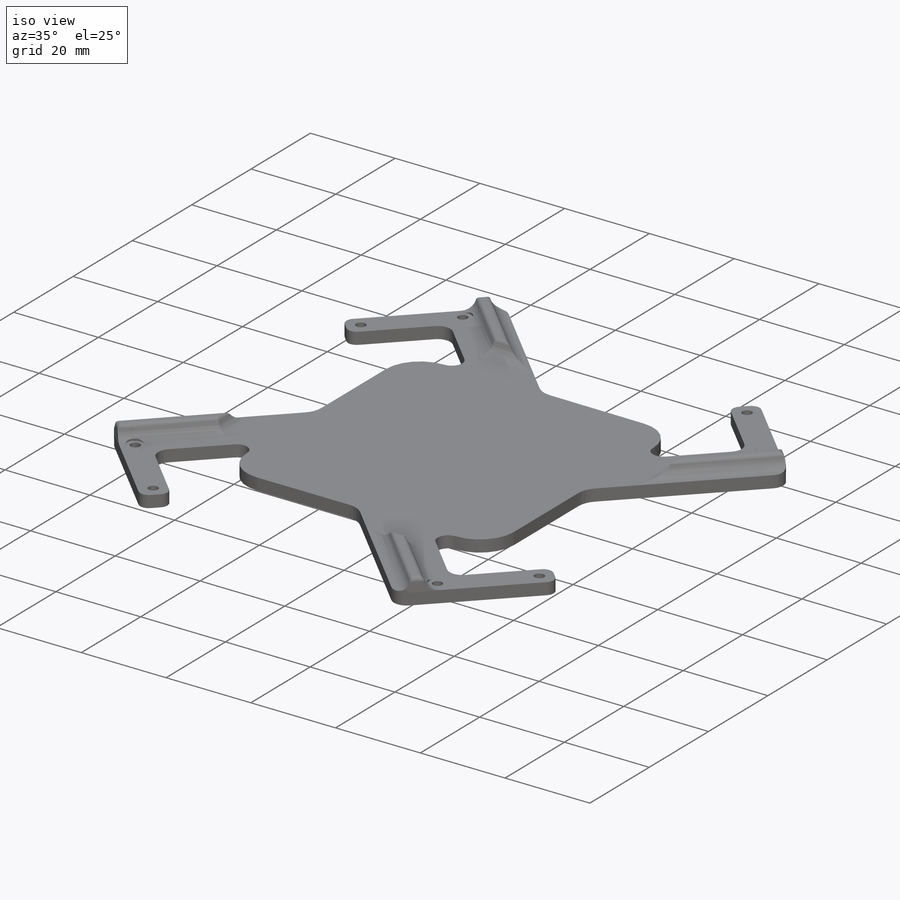
[diagram: iso view]
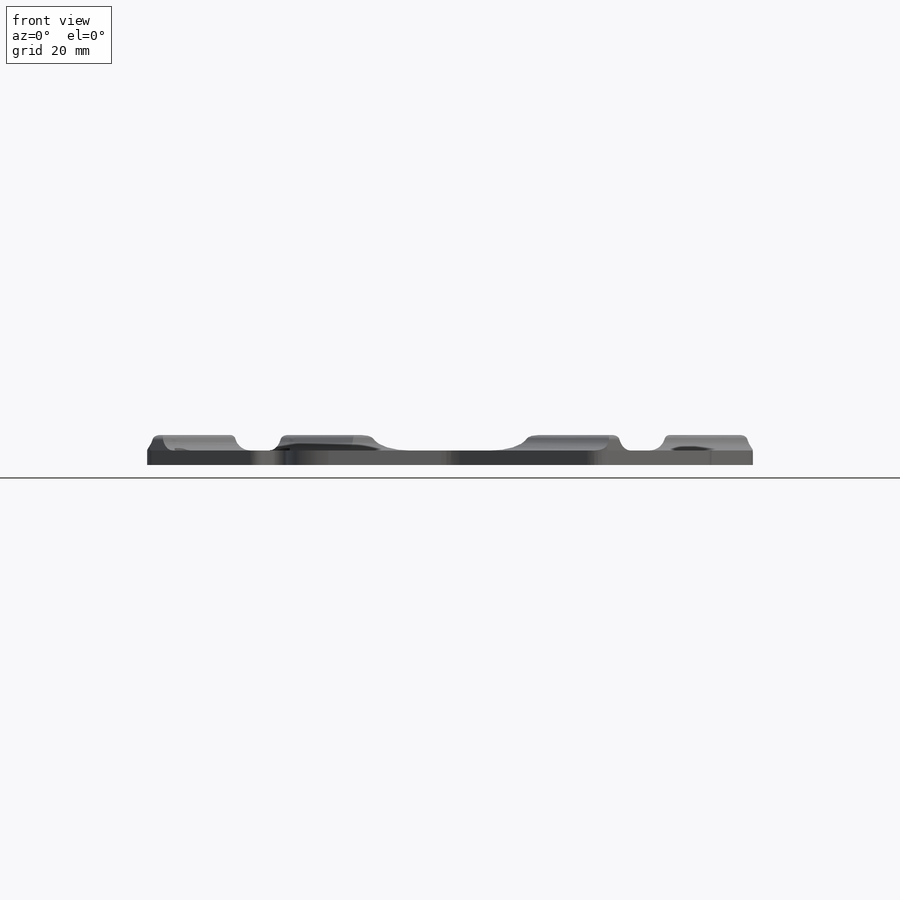
[diagram: front view]
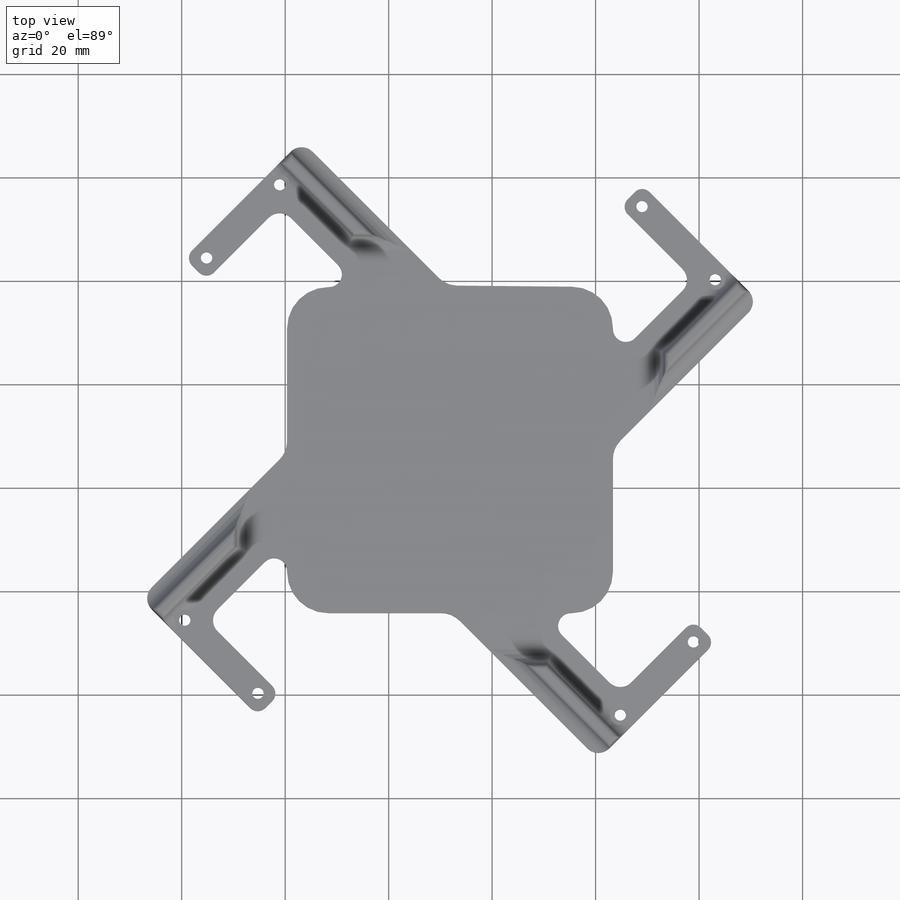
[diagram: top view]
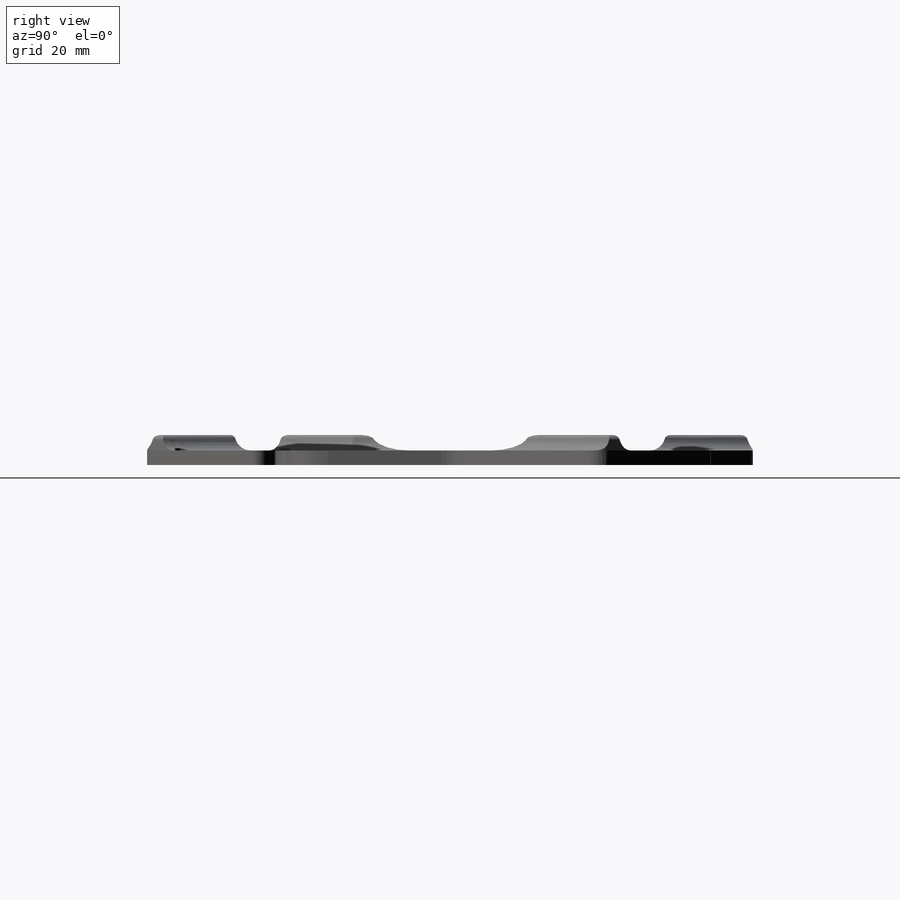
[diagram: right view]
SOLIDWORKS PART (.sldprt)
format: sldprt  version: not decoded by parser v0  size: 488,960 bytes
history: native  units: mm
features: sketch x4, extrude x2, cut_extrude x2, fillet x2, material x1 (+11 scaffold rows collapsed)
feature tree (22):
  scaffold x11  (default folders/planes/origin — collapsed)
  material  "Material <not specified>"
  sketch  "Sketch1"  dims[c1.D9=8.0mm c1.D10=2.0mm c1.D11=3.0mm c1.D7=2.5mm c1.D12=5.0mm c1.D2=2.5mm c2.D7=5.0mm c2.D8=2.0mm c2.D10=5.0mm c2.D11=2.5mm c2.D1=116.5mm c2.D2=63.0mm c3.D1=63.0mm c3.D3=11.0mm c3.D6=12.0mm c3.D4=6.0mm c3.D7=26.0mm c3.D8=~19.091883mm c3.D9=27.0mm c3.D10=27.0mm c4.D3=60.0mm c4.D4=10.0mm c4.D5=10.0mm c4.D6=3.0mm c4.D7=3.0mm c5.D3=12.0mm c5.D1=4.0]
  extrude  "Boss-Extrude1"  Depth=2.8mm
  sketch  "Sketch3"  dims[D1=3.0mm D2=9.0mm]
  cut_extrude  "Cut-Extrude1"  [1 undecoded]
  sketch  "Sketch4"  dims[c1.D3=~34.528798mm c1.D1=0.0mm c2.D3=30.0mm c2.D4=3.0mm c2.D5=20.0mm c2.D1=3.0mm c2.D2=3.0mm c3.D3=4.0]
  extrude  "Boss-Extrude2"  Depth=3mm
  fillet  "Fillet1"  Radius=3mm
  fillet  "Fillet2"  Radius=1mm
  sketch  "Sketch5"  dims[D1=~2.134799mm]
  cut_extrude  "Cut-Extrude2"  [1 undecoded]
decode coverage: 8 of 10 modeling features carry decoded parameters
note: ~ marks probable driven/reference dimensions
note: 2 parameter values undecoded
note: suppression state not decoded; provenance and decode notes live in map.json
